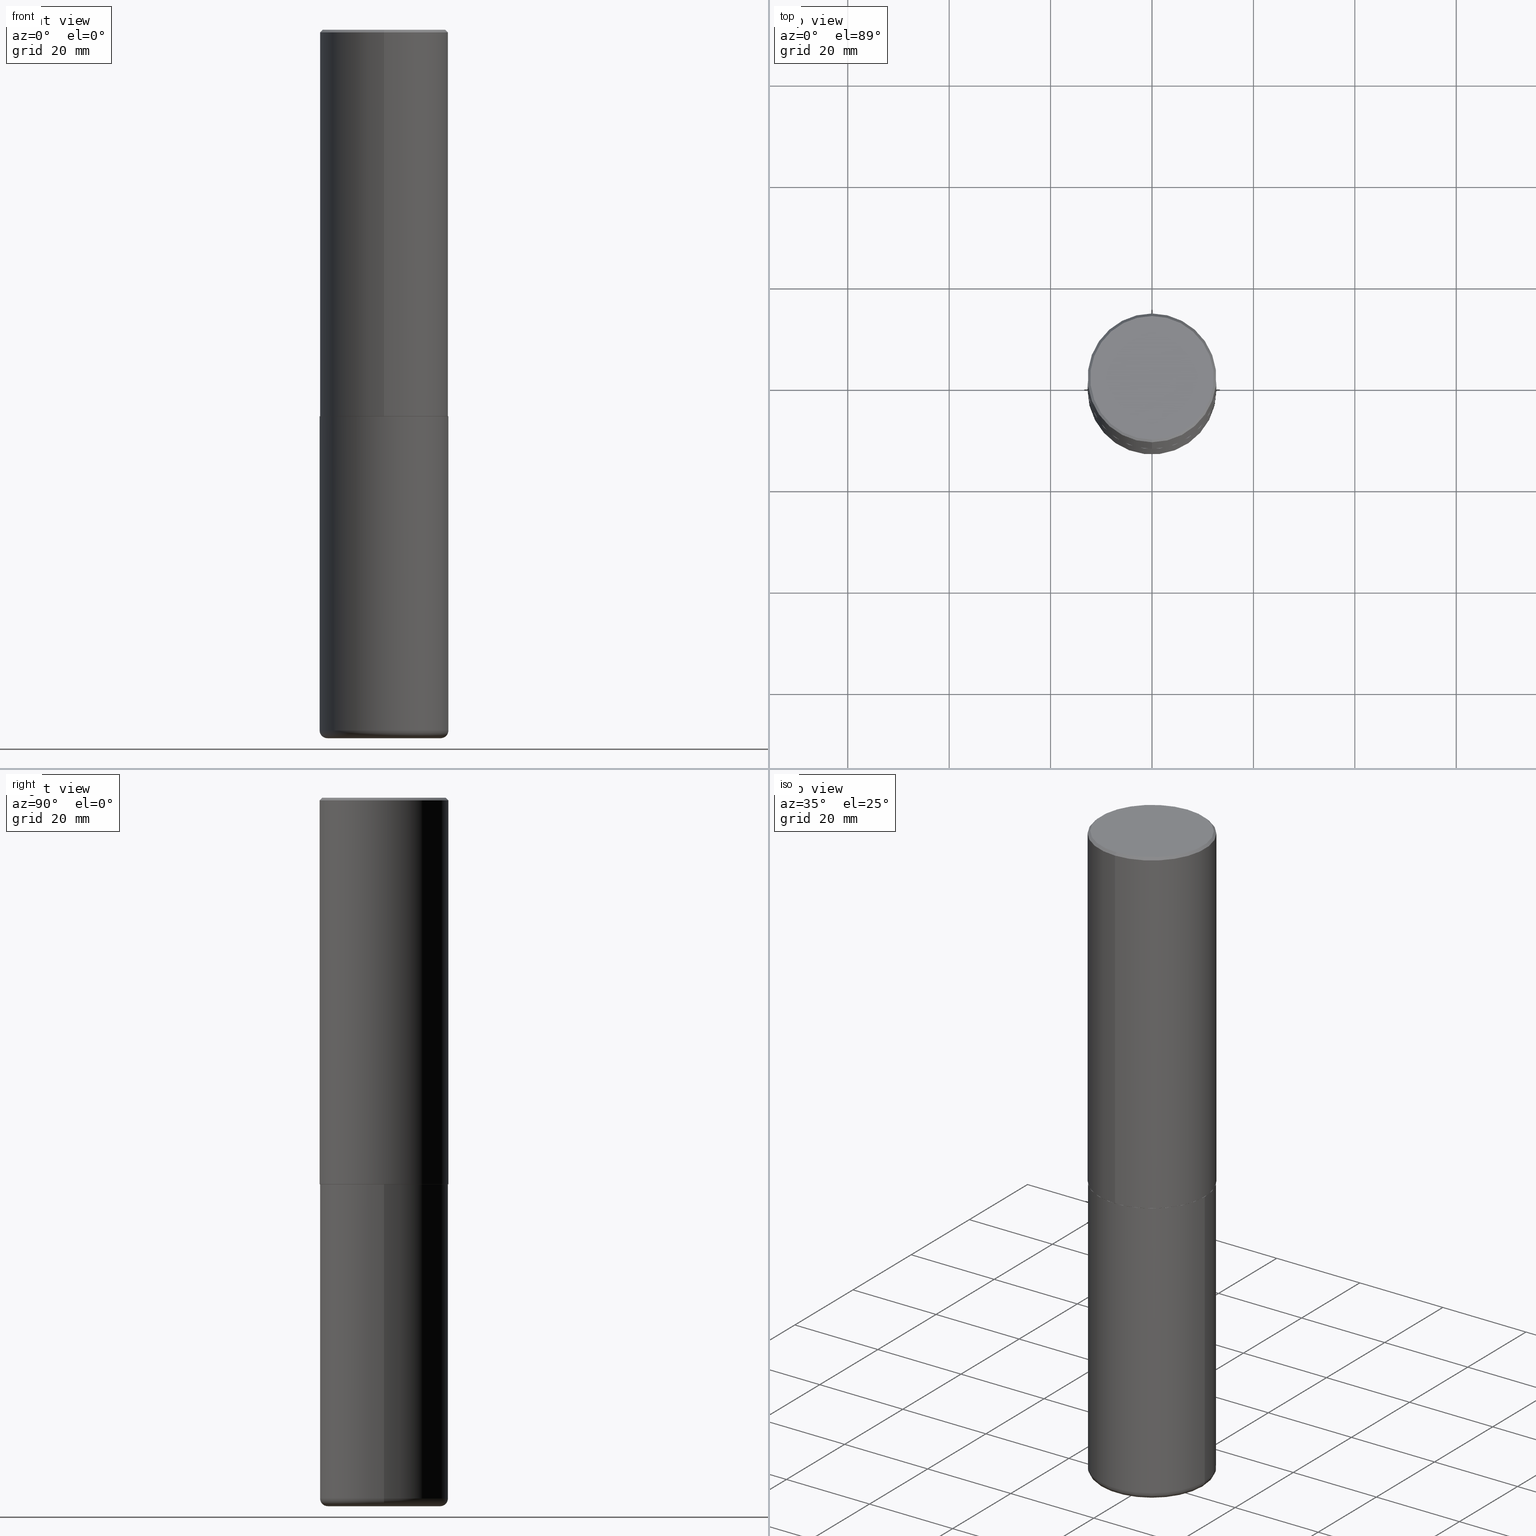
[diagram: canonical four-view strip — front | top / right | iso, engineering-drawing reading convention]
A machine part, canonical four-view strip (front | top / right | iso — engineering-drawing reading convention). The complete STEP part file that produces these views, byte-faithful:
ISO-10303-21;
HEADER;
FILE_DESCRIPTION (( 'STEP AP203' ),
    '1' );
FILE_NAME ('77468.STEP',
    '2024-05-02T19:45:51',
    ( '' ),
    ( '' ),
    'SwSTEP 2.0',
    'SolidWorks 2023',
    '' );
FILE_SCHEMA (( 'CONFIG_CONTROL_DESIGN' ));
ENDSEC;

DATA;
#1 = DIRECTION ( 'NONE',  ( 1.000000000000000000, -6.982962677686269077E-15, 0.000000000000000000 ) ) ;
#2 = CC_DESIGN_APPROVAL ( #122, ( #167 ) ) ;
#3 = VERTEX_POINT ( 'NONE', #256 ) ;
#4 = ADVANCED_FACE ( 'NONE', ( #134 ), #259, .F. ) ;
#5 = VERTEX_POINT ( 'NONE', #397 ) ;
#6 = CIRCLE ( 'NONE', #292, 0.5000000000000001110 ) ;
#7 = DIRECTION ( 'NONE',  ( 2.438088387897960049E-29, -3.491481338843145188E-15, -1.000000000000000000 ) ) ;
#8 = ORIENTED_EDGE ( 'NONE', *, *, #366, .F. ) ;
#9 = ORIENTED_EDGE ( 'NONE', *, *, #78, .T. ) ;
#10 = AXIS2_PLACEMENT_3D ( 'NONE', #295, #241, #172 ) ;
#11 = MANIFOLD_SOLID_BREP ( 'Body-Move/Copy2[1]', #391 ) ;
#12 = FACE_OUTER_BOUND ( 'NONE', #34, .T. ) ;
#13 = DATE_AND_TIME ( #52, #21 ) ;
#14 = CARTESIAN_POINT ( 'NONE',  ( -3.430248998885764992E-15, -0.5000000000000001110, -0.01999999999999835937 ) ) ;
#15 = PERSON_AND_ORGANIZATION ( #312, #395 ) ;
#16 = DIRECTION ( 'NONE',  ( -4.851104656540954020E-15, -0.7071067811865485719, -0.7071067811865464625 ) ) ;
#17 = CIRCLE ( 'NONE', #261, 0.5000000000000003331 ) ;
#18 = DIRECTION ( 'NONE',  ( -4.937700262167245946E-15, -0.7071067811869314879, 0.7071067811861635466 ) ) ;
#19 = DIRECTION ( 'NONE',  ( 1.000000000000000000, 0.000000000000000000, 0.000000000000000000 ) ) ;
#20 = PRODUCT_DEFINITION_FORMATION_WITH_SPECIFIED_SOURCE ( 'ANY', '', #41, .NOT_KNOWN. ) ;
#21 = LOCAL_TIME ( 15, 45, 51.00000000000000000, #338 ) ;
#22 = DIRECTION ( 'NONE',  ( -2.445468806185136877E-29, 3.491481338843145188E-15, 1.000000000000000000 ) ) ;
#23 = COORDINATED_UNIVERSAL_TIME_OFFSET ( 5, 0, .BEHIND. ) ;
#24 = EDGE_CURVE ( 'NONE', #277, #188, #266, .T. ) ;
#25 = DIRECTION ( 'NONE',  ( -2.446018302604025097E-29, 3.490694428695902798E-15, 1.000000000000000000 ) ) ;
#26 = CIRCLE ( 'NONE', #255, 0.5000000000000001110 ) ;
#27 = CONICAL_SURFACE ( 'NONE', #157, 0.4989999999999999991, 0.7853981633979947308 ) ;
#28 = PLANE ( 'NONE',  #268 ) ;
#29 = CARTESIAN_POINT ( 'NONE',  ( 7.338054907812074731E-29, -1.047208328608770642E-14, -2.999999999999999556 ) ) ;
#30 = APPROVAL_DATE_TIME ( #62, #122 ) ;
#31 = CARTESIAN_POINT ( 'NONE',  ( -0.5000000000000002220, -1.544094480450621205E-14, -5.439999999999999503 ) ) ;
#32 = LINE ( 'NONE', #349, #124 ) ;
#33 = AXIS2_PLACEMENT_3D ( 'NONE', #153, #187, #185 ) ;
#34 = EDGE_LOOP ( 'NONE', ( #392, #316, #281, #71 ) ) ;
#35 = ORIENTED_EDGE ( 'NONE', *, *, #114, .F. ) ;
#36 = ORIENTED_EDGE ( 'NONE', *, *, #240, .T. ) ;
#37 = AXIS2_PLACEMENT_3D ( 'NONE', #48, #407, #337 ) ;
#38 = ADVANCED_FACE ( 'NONE', ( #354 ), #390, .T. ) ;
#39 = ORIENTED_EDGE ( 'NONE', *, *, #346, .F. ) ;
#40 = EDGE_CURVE ( 'NONE', #222, #226, #84, .T. ) ;
#41 = PRODUCT ( '77468', '77468', '', ( #150 ) ) ;
#42 = ORIENTED_EDGE ( 'NONE', *, *, #193, .F. ) ;
#43 = CARTESIAN_POINT ( 'NONE',  ( 7.338054907812074731E-29, -1.047208328608770642E-14, -2.999999999999999556 ) ) ;
#44 = DATE_TIME_ROLE ( 'creation_date' ) ;
#45 =( GEOMETRIC_REPRESENTATION_CONTEXT ( 3 ) GLOBAL_UNCERTAINTY_ASSIGNED_CONTEXT ( ( #59 ) ) GLOBAL_UNIT_ASSIGNED_CONTEXT ( ( #298, #368, #231 ) ) REPRESENTATION_CONTEXT ( 'NONE', 'WORKASPACE' ) );
#46 = DIRECTION ( 'NONE',  ( -2.446018302604025097E-29, 3.490694428695902798E-15, 1.000000000000000000 ) ) ;
#47 = DATE_AND_TIME ( #117, #294 ) ;
#48 = CARTESIAN_POINT ( 'NONE',  ( 3.351822085289408337E-15, 0.4800000000000000933, -1.729078590335627126E-15 ) ) ;
#49 = LOCAL_TIME ( 15, 45, 51.00000000000000000, #177 ) ;
#50 = APPROVAL_STATUS ( 'not_yet_approved' ) ;
#51 = DIRECTION ( 'NONE',  ( -2.446018302604025378E-29, 3.490694428695902798E-15, 1.000000000000000000 ) ) ;
#52 = CALENDAR_DATE ( 2024, 2, 5 ) ;
#53 = CIRCLE ( 'NONE', #119, 0.4400000000000000022 ) ;
#54 = DIRECTION ( 'NONE',  ( -6.982962677686265922E-15, -1.000000000000000000, 3.490694428695902798E-15 ) ) ;
#55 = EDGE_CURVE ( 'NONE', #374, #196, #26, .T. ) ;
#56 = DIRECTION ( 'NONE',  ( 0.000000000000000000, 0.000000000000000000, 1.000000000000000000 ) ) ;
#57 = CARTESIAN_POINT ( 'NONE',  ( 7.335608889509473609E-29, -1.046859259165901344E-14, -2.999000000000000554 ) ) ;
#58 = DIRECTION ( 'NONE',  ( -2.446018302604025378E-29, 3.490694428695902798E-15, 1.000000000000000000 ) ) ;
#59 = UNCERTAINTY_MEASURE_WITH_UNIT (LENGTH_MEASURE( 1.000000000000000082E-05 ), #298, 'distance_accuracy_value', 'NONE');
#60 = CONICAL_SURFACE ( 'NONE', #318, 0.5000000000000000000, 0.7853981633974463916 ) ;
#61 = LINE ( 'NONE', #348, #68 ) ;
#62 = DATE_AND_TIME ( #204, #49 ) ;
#63 = DIRECTION ( 'NONE',  ( -2.445468806185136877E-29, 3.491481338843145188E-15, 1.000000000000000000 ) ) ;
#64 = ORIENTED_EDGE ( 'NONE', *, *, #127, .T. ) ;
#65 = CARTESIAN_POINT ( 'NONE',  ( 4.892036605208077240E-31, -6.981388857391842821E-17, -0.02000000000000010797 ) ) ;
#66 = EDGE_LOOP ( 'NONE', ( #288, #323 ) ) ;
#67 = DIRECTION ( 'NONE',  ( 1.000000000000000000, -6.982962677686270655E-15, 0.000000000000000000 ) ) ;
#68 = VECTOR ( 'NONE', #63, 39.37007874015748143 ) ;
#69 = APPROVAL ( #173, 'UNSPECIFIED' ) ;
#70 = ORIENTED_EDGE ( 'NONE', *, *, #282, .F. ) ;
#71 = ORIENTED_EDGE ( 'NONE', *, *, #301, .F. ) ;
#72 = ORIENTED_EDGE ( 'NONE', *, *, #317, .T. ) ;
#73 = AXIS2_PLACEMENT_3D ( 'NONE', #297, #79, #367 ) ;
#74 = ORIENTED_EDGE ( 'NONE', *, *, #102, .F. ) ;
#75 = ORIENTED_EDGE ( 'NONE', *, *, #396, .F. ) ;
#76 = APPLICATION_PROTOCOL_DEFINITION ( 'international standard', 'config_control_design', 1994, #406 ) ;
#77 = LINE ( 'NONE', #232, #106 ) ;
#78 = EDGE_CURVE ( 'NONE', #355, #5, #307, .T. ) ;
#79 = DIRECTION ( 'NONE',  ( 7.105427357601001859E-15, 1.000000000000000000, -3.491481338843145583E-15 ) ) ;
#80 = CARTESIAN_POINT ( 'NONE',  ( -3.491481338843061963E-15, -0.5000000000000107692, -2.998999999999998778 ) ) ;
#81 = APPROVAL_STATUS ( 'not_yet_approved' ) ;
#82 = EDGE_CURVE ( 'NONE', #277, #101, #202, .T. ) ;
#83 = CC_DESIGN_PERSON_AND_ORGANIZATION_ASSIGNMENT ( #146, #363, ( #41 ) ) ;
#84 = LINE ( 'NONE', #271, #201 ) ;
#85 = VECTOR ( 'NONE', #16, 39.37007874015748143 ) ;
#86 = DIRECTION ( 'NONE',  ( -2.445468806185136597E-29, 3.491481338843145583E-15, 1.000000000000000000 ) ) ;
#87 = DIRECTION ( 'NONE',  ( -2.446018302604025378E-29, 3.490694428695902798E-15, 1.000000000000000000 ) ) ;
#88 = ORIENTED_EDGE ( 'NONE', *, *, #156, .F. ) ;
#89 = DIRECTION ( 'NONE',  ( -1.000000000000000000, 6.982962677686265922E-15, -4.876176775795935793E-29 ) ) ;
#90 = AXIS2_PLACEMENT_3D ( 'NONE', #145, #86, #112 ) ;
#91 = CIRCLE ( 'NONE', #219, 0.5000000000000000000 ) ;
#92 = DIRECTION ( 'NONE',  ( -2.445468806185136597E-29, 3.491481338843145583E-15, 1.000000000000000000 ) ) ;
#93 = ORIENTED_EDGE ( 'NONE', *, *, #127, .F. ) ;
#94 = DIRECTION ( 'NONE',  ( 6.982962677686265922E-15, 1.000000000000000000, -3.491643216902136408E-15 ) ) ;
#95 = ORIENTED_EDGE ( 'NONE', *, *, #98, .F. ) ;
#96 = CC_DESIGN_PERSON_AND_ORGANIZATION_ASSIGNMENT ( #296, #109, ( #20 ) ) ;
#97 = DIRECTION ( 'NONE',  ( -2.445468806185136597E-29, 3.491481338843145583E-15, 1.000000000000000000 ) ) ;
#98 = EDGE_CURVE ( 'NONE', #355, #374, #357, .T. ) ;
#99 = CONICAL_SURFACE ( 'NONE', #183, 0.5000000000000000000, 0.7853981633974463916 ) ;
#100 = ORIENTED_EDGE ( 'NONE', *, *, #169, .F. ) ;
#101 = VERTEX_POINT ( 'NONE', #80 ) ;
#102 = EDGE_CURVE ( 'NONE', #417, #199, #233, .T. ) ;
#103 = CARTESIAN_POINT ( 'NONE',  ( 0.000000000000000000, 0.000000000000000000, 0.000000000000000000 ) ) ;
#104 = ORIENTED_EDGE ( 'NONE', *, *, #302, .F. ) ;
#105 = AXIS2_PLACEMENT_3D ( 'NONE', #121, #182, #89 ) ;
#106 = VECTOR ( 'NONE', #22, 39.37007874015748143 ) ;
#107 = DIRECTION ( 'NONE',  ( -2.446018302604025378E-29, 3.490694428695902798E-15, 1.000000000000000000 ) ) ;
#108 = DIRECTION ( 'NONE',  ( 1.000000000000000000, -6.982962677686266711E-15, 0.000000000000000000 ) ) ;
#109 = PERSON_AND_ORGANIZATION_ROLE ( 'design_supplier' ) ;
#110 = DIRECTION ( 'NONE',  ( -2.446018302604025378E-29, 3.490694428695902798E-15, 1.000000000000000000 ) ) ;
#111 = CIRCLE ( 'NONE', #364, 0.4800000000000000933 ) ;
#112 = DIRECTION ( 'NONE',  ( 1.000000000000000000, -6.982962677686270655E-15, 0.000000000000000000 ) ) ;
#113 = APPROVAL_ROLE ( '' ) ;
#114 = EDGE_CURVE ( 'NONE', #374, #199, #77, .T. ) ;
#115 = ADVANCED_FACE ( 'NONE', ( #12 ), #287, .T. ) ;
#116 = FACE_OUTER_BOUND ( 'NONE', #66, .T. ) ;
#117 = CALENDAR_DATE ( 2024, 2, 5 ) ;
#118 = CARTESIAN_POINT ( 'NONE',  ( -3.491481338843133750E-15, -0.5000000000000001110, 1.745347214347951794E-15 ) ) ;
#119 = AXIS2_PLACEMENT_3D ( 'NONE', #320, #97, #67 ) ;
#120 = DIRECTION ( 'NONE',  ( 1.000000000000000000, -6.982962677686273021E-15, 0.000000000000000000 ) ) ;
#121 = CARTESIAN_POINT ( 'NONE',  ( 3.911882143583421782E-29, -3.286238733195861778E-14, -5.500000000000000000 ) ) ;
#122 = APPROVAL ( #50, 'UNSPECIFIED' ) ;
#123 = DIRECTION ( 'NONE',  ( -6.982962677686265922E-15, -1.000000000000000000, 3.490694428695902798E-15 ) ) ;
#124 = VECTOR ( 'NONE', #375, 39.37007874015748143 ) ;
#125 = CARTESIAN_POINT ( 'NONE',  ( 0.000000000000000000, 0.000000000000000000, 0.000000000000000000 ) ) ;
#126 = ORIENTED_EDGE ( 'NONE', *, *, #139, .T. ) ;
#127 = EDGE_CURVE ( 'NONE', #164, #3, #267, .T. ) ;
#128 = FACE_OUTER_BOUND ( 'NONE', #135, .T. ) ;
#129 = ORIENTED_EDGE ( 'NONE', *, *, #40, .T. ) ;
#130 = CARTESIAN_POINT ( 'NONE',  ( 0.000000000000000000, 0.000000000000000000, 0.000000000000000000 ) ) ;
#131 = VERTEX_POINT ( 'NONE', #293 ) ;
#132 = ORIENTED_EDGE ( 'NONE', *, *, #317, .F. ) ;
#133 = ORIENTED_EDGE ( 'NONE', *, *, #40, .F. ) ;
#134 = FACE_OUTER_BOUND ( 'NONE', #379, .T. ) ;
#135 = EDGE_LOOP ( 'NONE', ( #42, #64, #126, #100 ) ) ;
#136 = CIRCLE ( 'NONE', #257, 0.5000000000000003331 ) ;
#137 = LOCAL_TIME ( 15, 45, 51.00000000000000000, #23 ) ;
#138 = ADVANCED_FACE ( 'NONE', ( #332 ), #27, .T. ) ;
#139 = EDGE_CURVE ( 'NONE', #3, #226, #91, .T. ) ;
#140 = LINE ( 'NONE', #335, #341 ) ;
#141 = CALENDAR_DATE ( 2024, 2, 5 ) ;
#142 = CARTESIAN_POINT ( 'NONE',  ( 4.892036605208077240E-31, -6.981388857391842821E-17, -0.02000000000000010797 ) ) ;
#143 = PERSON_AND_ORGANIZATION_ROLE ( 'classification_officer' ) ;
#144 = VECTOR ( 'NONE', #18, 39.37007874015748143 ) ;
#145 = CARTESIAN_POINT ( 'NONE',  ( 1.345007843401825128E-28, -1.920314736363730603E-14, -5.500000000000000888 ) ) ;
#146 = PERSON_AND_ORGANIZATION ( #312, #395 ) ;
#147 = DIRECTION ( 'NONE',  ( -2.445468806185136597E-29, 3.491481338843145583E-15, 1.000000000000000000 ) ) ;
#148 = PERSON_AND_ORGANIZATION_ROLE ( 'creator' ) ;
#149 = LINE ( 'NONE', #118, #378 ) ;
#150 = MECHANICAL_CONTEXT ( 'NONE', #406, 'mechanical' ) ;
#151 = MANIFOLD_SOLID_BREP ( 'Body-Move/Copy2[2]', #328 ) ;
#152 = DIRECTION ( 'NONE',  ( -6.982962677686265922E-15, -1.000000000000000000, 3.490694428695902798E-15 ) ) ;
#153 = CARTESIAN_POINT ( 'NONE',  ( 2.619453942708643347E-45, -3.738203133764044518E-31, -1.070905291231867826E-16 ) ) ;
#154 = ORIENTED_EDGE ( 'NONE', *, *, #380, .T. ) ;
#155 = FACE_OUTER_BOUND ( 'NONE', #228, .T. ) ;
#156 = EDGE_CURVE ( 'NONE', #222, #101, #17, .T. ) ;
#157 = AXIS2_PLACEMENT_3D ( 'NONE', #43, #299, #269 ) ;
#158 = DIRECTION ( 'NONE',  ( -2.445468806185136597E-29, 3.491481338843145583E-15, 1.000000000000000000 ) ) ;
#159 = ORIENTED_EDGE ( 'NONE', *, *, #211, .T. ) ;
#160 = CYLINDRICAL_SURFACE ( 'NONE', #227, 0.5000000000000000000 ) ;
#161 = ORIENTED_EDGE ( 'NONE', *, *, #78, .F. ) ;
#162 = EDGE_LOOP ( 'NONE', ( #358, #350, #229, #88 ) ) ;
#163 = AXIS2_PLACEMENT_3D ( 'NONE', #327, #147, #108 ) ;
#164 = VERTEX_POINT ( 'NONE', #207 ) ;
#165 = APPROVAL_PERSON_ORGANIZATION ( #213, #319, #408 ) ;
#166 = EDGE_LOOP ( 'NONE', ( #321, #36, #104, #415 ) ) ;
#167 = SECURITY_CLASSIFICATION ( '', '', #175 ) ;
#168 = EDGE_LOOP ( 'NONE', ( #262, #129, #194, #186 ) ) ;
#169 = EDGE_CURVE ( 'NONE', #131, #226, #140, .T. ) ;
#170 = ADVANCED_FACE ( 'NONE', ( #263 ), #60, .T. ) ;
#171 = DIRECTION ( 'NONE',  ( 4.937700262164537787E-15, 0.7071067811865436870, -0.7071067811865513475 ) ) ;
#172 = DIRECTION ( 'NONE',  ( 1.000000000000000000, -6.982962677686262766E-15, 4.883557194083111780E-29 ) ) ;
#173 = APPROVAL_STATUS ( 'not_yet_approved' ) ;
#174 = CARTESIAN_POINT ( 'NONE',  ( 2.619453942708643347E-45, -3.738203133764044518E-31, -1.070905291231867826E-16 ) ) ;
#175 = SECURITY_CLASSIFICATION_LEVEL ( 'unclassified' ) ;
#176 = CARTESIAN_POINT ( 'NONE',  ( 0.5000000000000002220, -2.248513982214985265E-14, -5.439999999999999503 ) ) ;
#177 = COORDINATED_UNIVERSAL_TIME_OFFSET ( 5, 0, .BEHIND. ) ;
#178 = AXIS2_PLACEMENT_3D ( 'NONE', #414, #58, #123 ) ;
#179 = CARTESIAN_POINT ( 'NONE',  ( 3.549160965121774184E-15, 0.4989999999999895630, -3.000000000000001332 ) ) ;
#180 = CYLINDRICAL_SURFACE ( 'NONE', #324, 0.5000000000000000000 ) ;
#181 = ADVANCED_FACE ( 'NONE', ( #116 ), #238, .F. ) ;
#182 = DIRECTION ( 'NONE',  ( 2.438088387897960049E-29, -3.491481338843145188E-15, -1.000000000000000000 ) ) ;
#183 = AXIS2_PLACEMENT_3D ( 'NONE', #65, #275, #94 ) ;
#184 = FACE_OUTER_BOUND ( 'NONE', #225, .T. ) ;
#185 = DIRECTION ( 'NONE',  ( -6.982962677686265922E-15, -1.000000000000000000, 3.490694428695902798E-15 ) ) ;
#186 = ORIENTED_EDGE ( 'NONE', *, *, #211, .F. ) ;
#187 = DIRECTION ( 'NONE',  ( -2.446018302604025378E-29, 3.490694428695902798E-15, 1.000000000000000000 ) ) ;
#188 = VERTEX_POINT ( 'NONE', #179 ) ;
#189 = AXIS2_PLACEMENT_3D ( 'NONE', #411, #418, #120 ) ;
#190 = CARTESIAN_POINT ( 'NONE',  ( 0.5000000000000000000, -1.396592535537256813E-14, -2.999999999999999556 ) ) ;
#191 = APPROVAL_PERSON_ORGANIZATION ( #203, #69, #333 ) ;
#192 = EDGE_LOOP ( 'NONE', ( #95, #9, #359, #252 ) ) ;
#193 = EDGE_CURVE ( 'NONE', #164, #131, #111, .T. ) ;
#194 = ORIENTED_EDGE ( 'NONE', *, *, #139, .F. ) ;
#195 = TOROIDAL_SURFACE ( 'NONE', #248, 0.4400000000000000022, 0.06000000000000051820 ) ;
#196 = VERTEX_POINT ( 'NONE', #176 ) ;
#197 = DIRECTION ( 'NONE',  ( -1.000000000000000000, 6.982962677686265922E-15, -4.876176775795935793E-29 ) ) ;
#198 = CC_DESIGN_PERSON_AND_ORGANIZATION_ASSIGNMENT ( #15, #143, ( #167 ) ) ;
#199 = VERTEX_POINT ( 'NONE', #303 ) ;
#200 = COORDINATED_UNIVERSAL_TIME_OFFSET ( 5, 0, .BEHIND. ) ;
#201 = VECTOR ( 'NONE', #46, 39.37007874015748143 ) ;
#202 = LINE ( 'NONE', #398, #144 ) ;
#203 = PERSON_AND_ORGANIZATION ( #312, #395 ) ;
#204 = CALENDAR_DATE ( 2024, 2, 5 ) ;
#205 = DIRECTION ( 'NONE',  ( -6.982962677686265922E-15, -1.000000000000000000, 3.278217592397113496E-15 ) ) ;
#206 = APPROVAL_DATE_TIME ( #13, #319 ) ;
#207 = CARTESIAN_POINT ( 'NONE',  ( -3.361644018908050055E-15, -0.4800000000000000933, 1.568442796650846842E-15 ) ) ;
#208 = ADVANCED_BREP_SHAPE_REPRESENTATION ( '77468', ( #11, #151, #331 ), #45 ) ;
#209 = CARTESIAN_POINT ( 'NONE',  ( 0.000000000000000000, 0.000000000000000000, 0.000000000000000000 ) ) ;
#210 = AXIS2_PLACEMENT_3D ( 'NONE', #286, #7, #197 ) ;
#211 = EDGE_CURVE ( 'NONE', #101, #3, #149, .T. ) ;
#212 = DIRECTION ( 'NONE',  ( -6.982962677686265922E-15, -1.000000000000000000, 3.491643216902136408E-15 ) ) ;
#213 = PERSON_AND_ORGANIZATION ( #312, #395 ) ;
#214 = CIRCLE ( 'NONE', #33, 0.4800000000000000933 ) ;
#215 = DIRECTION ( 'NONE',  ( 1.000000000000000000, -6.982962677686266711E-15, 4.876176775795935793E-29 ) ) ;
#216 = ADVANCED_FACE ( 'NONE', ( #306 ), #28, .F. ) ;
#217 = CYLINDRICAL_SURFACE ( 'NONE', #178, 0.5000000000000001110 ) ;
#218 = CARTESIAN_POINT ( 'NONE',  ( 7.336406418555408669E-29, -1.047444401652943478E-14, -2.999999999999999556 ) ) ;
#219 = AXIS2_PLACEMENT_3D ( 'NONE', #142, #264, #212 ) ;
#220 = DIRECTION ( 'NONE',  ( 1.000000000000000000, -6.982962677686262766E-15, 4.883557194083111780E-29 ) ) ;
#221 = CARTESIAN_POINT ( 'NONE',  ( -3.484498376165373188E-15, -0.4990000000000104352, -2.999999999999998224 ) ) ;
#222 = VERTEX_POINT ( 'NONE', #274 ) ;
#223 = DIRECTION ( 'NONE',  ( 1.000000000000000000, -6.982962677686266711E-15, 4.876176775795935793E-29 ) ) ;
#224 = ORIENTED_EDGE ( 'NONE', *, *, #55, .T. ) ;
#225 = EDGE_LOOP ( 'NONE', ( #133, #386, #159, #132 ) ) ;
#226 = VERTEX_POINT ( 'NONE', #315 ) ;
#227 = AXIS2_PLACEMENT_3D ( 'NONE', #130, #284, #223 ) ;
#228 = EDGE_LOOP ( 'NONE', ( #75, #161 ) ) ;
#229 = ORIENTED_EDGE ( 'NONE', *, *, #82, .T. ) ;
#230 = DIRECTION ( 'NONE',  ( -6.982962677686265922E-15, -1.000000000000000000, 3.490694428695902798E-15 ) ) ;
#231 =( NAMED_UNIT ( * ) SI_UNIT ( $, .STERADIAN. ) SOLID_ANGLE_UNIT ( ) );
#232 = CARTESIAN_POINT ( 'NONE',  ( -0.5000000000000000000, 3.552713678800500929E-15, -2.459467545127452891E-29 ) ) ;
#233 = CIRCLE ( 'NONE', #163, 0.5000000000000000000 ) ;
#234 = CALENDAR_DATE ( 2024, 2, 5 ) ;
#235 = ADVANCED_FACE ( 'NONE', ( #412 ), #300, .T. ) ;
#236 = DIRECTION ( 'NONE',  ( 2.446018302604025378E-29, -3.490694428695902798E-15, -1.000000000000000000 ) ) ;
#237 = DATE_AND_TIME ( #141, #137 ) ;
#238 = PLANE ( 'NONE',  #37 ) ;
#239 = APPLICATION_PROTOCOL_DEFINITION ( 'international standard', 'config_control_design', 1994, #290 ) ;
#240 = EDGE_CURVE ( 'NONE', #188, #222, #32, .T. ) ;
#241 = DIRECTION ( 'NONE',  ( -2.445468806185136597E-29, 3.491481338843145583E-15, 1.000000000000000000 ) ) ;
#242 = LENGTH_MEASURE_WITH_UNIT ( LENGTH_MEASURE( 0.02539999999999999897 ), #272 );
#243 = CIRCLE ( 'NONE', #353, 0.4989999999999999991 ) ;
#244 = DIRECTION ( 'NONE',  ( -6.982962677686265922E-15, -1.000000000000000000, 3.278217592397113496E-15 ) ) ;
#245 = PLANE ( 'NONE',  #105 ) ;
#246 = DIRECTION ( 'NONE',  ( -6.982962677686265922E-15, -1.000000000000000000, 3.284787166730577015E-15 ) ) ;
#247 = EDGE_LOOP ( 'NONE', ( #35, #224, #383, #70 ) ) ;
#248 = AXIS2_PLACEMENT_3D ( 'NONE', #377, #92, #220 ) ;
#249 = CARTESIAN_POINT ( 'NONE',  ( 7.338054907812074731E-29, -1.047208328608770642E-14, -2.999999999999999556 ) ) ;
#250 = ORIENTED_EDGE ( 'NONE', *, *, #282, .T. ) ;
#251 = FACE_OUTER_BOUND ( 'NONE', #325, .T. ) ;
#252 = ORIENTED_EDGE ( 'NONE', *, *, #55, .F. ) ;
#253 = FACE_OUTER_BOUND ( 'NONE', #247, .T. ) ;
#254 = CC_DESIGN_DATE_AND_TIME_ASSIGNMENT ( #270, #405, ( #167 ) ) ;
#255 = AXIS2_PLACEMENT_3D ( 'NONE', #371, #369, #361 ) ;
#256 = CARTESIAN_POINT ( 'NONE',  ( -3.430248998885764992E-15, -0.5000000000000001110, -0.01999999999999835937 ) ) ;
#257 = AXIS2_PLACEMENT_3D ( 'NONE', #57, #87, #244 ) ;
#258 = EDGE_LOOP ( 'NONE', ( #356, #39 ) ) ;
#259 = PLANE ( 'NONE',  #210 ) ;
#260 = CARTESIAN_POINT ( 'NONE',  ( 7.338054907812074731E-29, -1.047208328608770642E-14, -2.999999999999999556 ) ) ;
#261 = AXIS2_PLACEMENT_3D ( 'NONE', #365, #110, #205 ) ;
#262 = ORIENTED_EDGE ( 'NONE', *, *, #302, .T. ) ;
#263 = FACE_OUTER_BOUND ( 'NONE', #285, .T. ) ;
#264 = DIRECTION ( 'NONE',  ( -2.446018302604025378E-29, 3.490694428695902798E-15, 1.000000000000000000 ) ) ;
#265 = ADVANCED_FACE ( 'NONE', ( #128 ), #99, .T. ) ;
#266 = CIRCLE ( 'NONE', #376, 0.4989999999999999991 ) ;
#267 = LINE ( 'NONE', #14, #85 ) ;
#268 = AXIS2_PLACEMENT_3D ( 'NONE', #416, #25, #152 ) ;
#269 = DIRECTION ( 'NONE',  ( -6.982962677686265922E-15, -1.000000000000000000, 3.284787166730577015E-15 ) ) ;
#270 = DATE_AND_TIME ( #234, #413 ) ;
#271 = CARTESIAN_POINT ( 'NONE',  ( 3.552713678800501718E-15, 0.5000000000000001110, -1.745347214347951794E-15 ) ) ;
#272 =( LENGTH_UNIT ( ) NAMED_UNIT ( * ) SI_UNIT ( $, .METRE. ) );
#273 = DIRECTION ( 'NONE',  ( 1.000000000000000000, -6.982962677686266711E-15, 0.000000000000000000 ) ) ;
#274 = CARTESIAN_POINT ( 'NONE',  ( 3.552713678800539584E-15, 0.4999999999999898970, -2.999000000000001886 ) ) ;
#275 = DIRECTION ( 'NONE',  ( 2.446018302604025378E-29, -3.490694428695902798E-15, -1.000000000000000000 ) ) ;
#276 = CARTESIAN_POINT ( 'NONE',  ( 1.330335030564714425E-28, -1.899365848330671298E-14, -5.439999999999999503 ) ) ;
#277 = VERTEX_POINT ( 'NONE', #221 ) ;
#278 = ADVANCED_FACE ( 'NONE', ( #155 ), #245, .T. ) ;
#279 = CIRCLE ( 'NONE', #189, 0.06000000000000051820 ) ;
#280 = DIRECTION ( 'NONE',  ( -2.446018302604025378E-29, 3.490694428695902798E-15, 1.000000000000000000 ) ) ;
#281 = ORIENTED_EDGE ( 'NONE', *, *, #380, .F. ) ;
#282 = EDGE_CURVE ( 'NONE', #199, #417, #401, .T. ) ;
#283 = EDGE_CURVE ( 'NONE', #131, #164, #214, .T. ) ;
#284 = DIRECTION ( 'NONE',  ( -2.445468806185136597E-29, 3.491481338843145583E-15, 1.000000000000000000 ) ) ;
#285 = EDGE_LOOP ( 'NONE', ( #93, #388, #314, #72 ) ) ;
#286 = CARTESIAN_POINT ( 'NONE',  ( 7.336406418555408669E-29, -1.047444401652943478E-14, -2.999999999999999556 ) ) ;
#287 = TOROIDAL_SURFACE ( 'NONE', #10, 0.4400000000000000022, 0.06000000000000051820 ) ;
#288 = ORIENTED_EDGE ( 'NONE', *, *, #283, .T. ) ;
#289 = ORIENTED_EDGE ( 'NONE', *, *, #102, .T. ) ;
#290 = APPLICATION_CONTEXT ( 'configuration controlled 3d designs of mechanical parts and assemblies' ) ;
#291 = ORIENTED_EDGE ( 'NONE', *, *, #114, .T. ) ;
#292 = AXIS2_PLACEMENT_3D ( 'NONE', #276, #351, #1 ) ;
#293 = CARTESIAN_POINT ( 'NONE',  ( 3.421651712066271240E-15, 0.4800000000000000933, -1.782623854897220357E-15 ) ) ;
#294 = LOCAL_TIME ( 15, 45, 51.00000000000000000, #200 ) ;
#295 = CARTESIAN_POINT ( 'NONE',  ( 1.330335030564714425E-28, -1.899365848330671298E-14, -5.439999999999999503 ) ) ;
#296 = PERSON_AND_ORGANIZATION ( #312, #395 ) ;
#297 = CARTESIAN_POINT ( 'NONE',  ( -0.4400000000000000022, -1.586727044596227254E-14, -5.439999999999999503 ) ) ;
#298 =( CONVERSION_BASED_UNIT ( 'INCH', #242 ) LENGTH_UNIT ( ) NAMED_UNIT ( #387 ) );
#299 = DIRECTION ( 'NONE',  ( -2.446018302604025378E-29, 3.490694428695902798E-15, 1.000000000000000000 ) ) ;
#300 = CONICAL_SURFACE ( 'NONE', #339, 0.4989999999999999991, 0.7853981633979947308 ) ;
#301 = EDGE_CURVE ( 'NONE', #5, #196, #279, .T. ) ;
#302 = EDGE_CURVE ( 'NONE', #101, #222, #136, .T. ) ;
#303 = CARTESIAN_POINT ( 'NONE',  ( -0.5000000000000000000, -1.118133757111757295E-14, -2.999999999999999556 ) ) ;
#304 = APPROVAL_DATE_TIME ( #47, #69 ) ;
#305 = DESIGN_CONTEXT ( 'detailed design', #290, 'design' ) ;
#306 = FACE_OUTER_BOUND ( 'NONE', #258, .T. ) ;
#307 = CIRCLE ( 'NONE', #90, 0.4400000000000000022 ) ;
#308 = FACE_OUTER_BOUND ( 'NONE', #192, .T. ) ;
#309 = AXIS2_PLACEMENT_3D ( 'NONE', #313, #372, #342 ) ;
#310 = ADVANCED_FACE ( 'NONE', ( #251 ), #180, .T. ) ;
#311 = DIRECTION ( 'NONE',  ( -6.982962677686265922E-15, -1.000000000000000000, 3.284787166730577015E-15 ) ) ;
#312 = PERSON ( 'UNSPECIFIED', 'UNSPECIFIED', 'UNSPECIFIED', ('UNSPECIFIED'), ('UNSPECIFIED'), ('UNSPECIFIED') ) ;
#313 = CARTESIAN_POINT ( 'NONE',  ( 4.892036605208077240E-31, -6.981388857391842821E-17, -0.02000000000000010797 ) ) ;
#314 = ORIENTED_EDGE ( 'NONE', *, *, #169, .T. ) ;
#315 = CARTESIAN_POINT ( 'NONE',  ( 3.491481338843133355E-15, 0.4999999999999999445, -0.02000000000000185310 ) ) ;
#316 = ORIENTED_EDGE ( 'NONE', *, *, #98, .T. ) ;
#317 = EDGE_CURVE ( 'NONE', #226, #3, #370, .T. ) ;
#318 = AXIS2_PLACEMENT_3D ( 'NONE', #340, #236, #402 ) ;
#319 = APPROVAL ( #81, 'UNSPECIFIED' ) ;
#320 = CARTESIAN_POINT ( 'NONE',  ( 1.345007843401825128E-28, -1.920314736363730603E-14, -5.500000000000000888 ) ) ;
#321 = ORIENTED_EDGE ( 'NONE', *, *, #24, .T. ) ;
#322 = ADVANCED_FACE ( 'NONE', ( #184 ), #217, .T. ) ;
#323 = ORIENTED_EDGE ( 'NONE', *, *, #193, .T. ) ;
#324 = AXIS2_PLACEMENT_3D ( 'NONE', #125, #384, #215 ) ;
#325 = EDGE_LOOP ( 'NONE', ( #154, #291, #74, #8 ) ) ;
#326 = DIRECTION ( 'NONE',  ( -6.982962677686265922E-15, -1.000000000000000000, 3.284787166730577015E-15 ) ) ;
#327 = CARTESIAN_POINT ( 'NONE',  ( 7.336406418555408669E-29, -1.047444401652943478E-14, -2.999999999999999556 ) ) ;
#328 = CLOSED_SHELL ( 'NONE', ( #235, #38, #265, #170, #322, #138, #216, #181 ) ) ;
#329 = PERSON_AND_ORGANIZATION ( #312, #395 ) ;
#330 = CC_DESIGN_PERSON_AND_ORGANIZATION_ASSIGNMENT ( #399, #403, ( #20 ) ) ;
#331 = AXIS2_PLACEMENT_3D ( 'NONE', #209, #56, #19 ) ;
#332 = FACE_OUTER_BOUND ( 'NONE', #162, .T. ) ;
#333 = APPROVAL_ROLE ( '' ) ;
#334 = CC_DESIGN_APPROVAL ( #69, ( #394 ) ) ;
#335 = CARTESIAN_POINT ( 'NONE',  ( 3.491481338843133355E-15, 0.4999999999999999445, -0.02000000000000185310 ) ) ;
#336 = PERSON_AND_ORGANIZATION ( #312, #395 ) ;
#337 = DIRECTION ( 'NONE',  ( 6.982962677686265922E-15, 1.000000000000000000, -3.490694428695902798E-15 ) ) ;
#338 = COORDINATED_UNIVERSAL_TIME_OFFSET ( 5, 0, .BEHIND. ) ;
#339 = AXIS2_PLACEMENT_3D ( 'NONE', #29, #280, #311 ) ;
#340 = CARTESIAN_POINT ( 'NONE',  ( 4.892036605208077240E-31, -6.981388857391842821E-17, -0.02000000000000010797 ) ) ;
#341 = VECTOR ( 'NONE', #171, 39.37007874015748143 ) ;
#342 = DIRECTION ( 'NONE',  ( -6.982962677686265922E-15, -1.000000000000000000, 3.491643216902136408E-15 ) ) ;
#343 = DIRECTION ( 'NONE',  ( -2.446018302604025097E-29, 3.490694428695902798E-15, 1.000000000000000000 ) ) ;
#344 = CC_DESIGN_SECURITY_CLASSIFICATION ( #167, ( #20 ) ) ;
#345 = APPROVAL_PERSON_ORGANIZATION ( #336, #122, #113 ) ;
#346 = EDGE_CURVE ( 'NONE', #188, #277, #243, .T. ) ;
#347 = CARTESIAN_POINT ( 'NONE',  ( -0.4400000000000000022, -1.575885206539953724E-14, -5.500000000000000888 ) ) ;
#348 = CARTESIAN_POINT ( 'NONE',  ( 0.5000000000000000000, -3.491481338843133355E-15, 2.438088387897967896E-29 ) ) ;
#349 = CARTESIAN_POINT ( 'NONE',  ( 3.545608251442972496E-15, 0.4989999999999895630, -3.000000000000001332 ) ) ;
#350 = ORIENTED_EDGE ( 'NONE', *, *, #346, .T. ) ;
#351 = DIRECTION ( 'NONE',  ( -2.445468806185136597E-29, 3.491481338843145583E-15, 1.000000000000000000 ) ) ;
#352 = SHAPE_DEFINITION_REPRESENTATION ( #362, #208 ) ;
#353 = AXIS2_PLACEMENT_3D ( 'NONE', #249, #382, #246 ) ;
#354 = FACE_OUTER_BOUND ( 'NONE', #168, .T. ) ;
#355 = VERTEX_POINT ( 'NONE', #347 ) ;
#356 = ORIENTED_EDGE ( 'NONE', *, *, #24, .F. ) ;
#357 = CIRCLE ( 'NONE', #73, 0.06000000000000051820 ) ;
#358 = ORIENTED_EDGE ( 'NONE', *, *, #240, .F. ) ;
#359 = ORIENTED_EDGE ( 'NONE', *, *, #301, .T. ) ;
#360 = ADVANCED_FACE ( 'NONE', ( #308 ), #195, .T. ) ;
#361 = DIRECTION ( 'NONE',  ( 1.000000000000000000, -6.982962677686269077E-15, 0.000000000000000000 ) ) ;
#362 = PRODUCT_DEFINITION_SHAPE ( 'NONE', 'NONE',  #394 ) ;
#363 = PERSON_AND_ORGANIZATION_ROLE ( 'design_owner' ) ;
#364 = AXIS2_PLACEMENT_3D ( 'NONE', #174, #51, #54 ) ;
#365 = CARTESIAN_POINT ( 'NONE',  ( 7.335608889509473609E-29, -1.046859259165901344E-14, -2.999000000000000554 ) ) ;
#366 = EDGE_CURVE ( 'NONE', #196, #417, #61, .T. ) ;
#367 = DIRECTION ( 'NONE',  ( -1.000000000000000000, 7.105427357600994759E-15, 0.000000000000000000 ) ) ;
#368 =( NAMED_UNIT ( * ) PLANE_ANGLE_UNIT ( ) SI_UNIT ( $, .RADIAN. ) );
#369 = DIRECTION ( 'NONE',  ( -2.445468806185136597E-29, 3.491481338843145583E-15, 1.000000000000000000 ) ) ;
#370 = CIRCLE ( 'NONE', #309, 0.5000000000000000000 ) ;
#371 = CARTESIAN_POINT ( 'NONE',  ( 1.330335030564714425E-28, -1.899365848330671298E-14, -5.439999999999999503 ) ) ;
#372 = DIRECTION ( 'NONE',  ( -2.446018302604025378E-29, 3.490694428695902798E-15, 1.000000000000000000 ) ) ;
#373 = CC_DESIGN_APPROVAL ( #319, ( #20 ) ) ;
#374 = VERTEX_POINT ( 'NONE', #31 ) ;
#375 = DIRECTION ( 'NONE',  ( 5.024295867790807626E-15, 0.7071067811869363728, 0.7071067811861586616 ) ) ;
#376 = AXIS2_PLACEMENT_3D ( 'NONE', #260, #107, #326 ) ;
#377 = CARTESIAN_POINT ( 'NONE',  ( 1.330335030564714425E-28, -1.899365848330671298E-14, -5.439999999999999503 ) ) ;
#378 = VECTOR ( 'NONE', #343, 39.37007874015748143 ) ;
#379 = EDGE_LOOP ( 'NONE', ( #289, #250 ) ) ;
#380 = EDGE_CURVE ( 'NONE', #196, #374, #6, .T. ) ;
#381 = ADVANCED_FACE ( 'NONE', ( #253 ), #160, .T. ) ;
#382 = DIRECTION ( 'NONE',  ( -2.446018302604025378E-29, 3.490694428695902798E-15, 1.000000000000000000 ) ) ;
#383 = ORIENTED_EDGE ( 'NONE', *, *, #366, .T. ) ;
#384 = DIRECTION ( 'NONE',  ( -2.445468806185136597E-29, 3.491481338843145583E-15, 1.000000000000000000 ) ) ;
#385 = AXIS2_PLACEMENT_3D ( 'NONE', #103, #404, #230 ) ;
#386 = ORIENTED_EDGE ( 'NONE', *, *, #156, .T. ) ;
#387 = DIMENSIONAL_EXPONENTS ( 1.000000000000000000, 0.000000000000000000, 0.000000000000000000, 0.000000000000000000, 0.000000000000000000, 0.000000000000000000, 0.000000000000000000 ) ;
#388 = ORIENTED_EDGE ( 'NONE', *, *, #283, .F. ) ;
#389 = CC_DESIGN_DATE_AND_TIME_ASSIGNMENT ( #237, #44, ( #394 ) ) ;
#390 = CYLINDRICAL_SURFACE ( 'NONE', #385, 0.5000000000000001110 ) ;
#391 = CLOSED_SHELL ( 'NONE', ( #310, #115, #4, #381, #360, #278 ) ) ;
#392 = ORIENTED_EDGE ( 'NONE', *, *, #396, .T. ) ;
#393 = AXIS2_PLACEMENT_3D ( 'NONE', #218, #158, #273 ) ;
#394 = PRODUCT_DEFINITION ( 'UNKNOWN', '', #20, #305 ) ;
#395 = ORGANIZATION ( 'UNSPECIFIED', 'UNSPECIFIED', '' ) ;
#396 = EDGE_CURVE ( 'NONE', #5, #355, #53, .T. ) ;
#397 = CARTESIAN_POINT ( 'NONE',  ( 0.4400000000000000022, -2.227565094181926275E-14, -5.500000000000000888 ) ) ;
#398 = CARTESIAN_POINT ( 'NONE',  ( -3.484498376165373188E-15, -0.4990000000000104352, -2.999999999999998224 ) ) ;
#399 = PERSON_AND_ORGANIZATION ( #312, #395 ) ;
#400 = COORDINATED_UNIVERSAL_TIME_OFFSET ( 5, 0, .BEHIND. ) ;
#401 = CIRCLE ( 'NONE', #393, 0.5000000000000000000 ) ;
#402 = DIRECTION ( 'NONE',  ( 6.982962677686265922E-15, 1.000000000000000000, -3.491643216902136408E-15 ) ) ;
#403 = PERSON_AND_ORGANIZATION_ROLE ( 'creator' ) ;
#404 = DIRECTION ( 'NONE',  ( -2.446018302604025378E-29, 3.490694428695902798E-15, 1.000000000000000000 ) ) ;
#405 = DATE_TIME_ROLE ( 'classification_date' ) ;
#406 = APPLICATION_CONTEXT ( 'configuration controlled 3d designs of mechanical parts and assemblies' ) ;
#407 = DIRECTION ( 'NONE',  ( 2.446018302604025097E-29, -3.490694428695902798E-15, -1.000000000000000000 ) ) ;
#408 = APPROVAL_ROLE ( '' ) ;
#409 = PRODUCT_RELATED_PRODUCT_CATEGORY ( 'detail', '', ( #41 ) ) ;
#410 = CC_DESIGN_PERSON_AND_ORGANIZATION_ASSIGNMENT ( #329, #148, ( #394 ) ) ;
#411 = CARTESIAN_POINT ( 'NONE',  ( 0.4400000000000000022, -2.206616206148867286E-14, -5.439999999999999503 ) ) ;
#412 = FACE_OUTER_BOUND ( 'NONE', #166, .T. ) ;
#413 = LOCAL_TIME ( 15, 45, 51.00000000000000000, #400 ) ;
#414 = CARTESIAN_POINT ( 'NONE',  ( 0.000000000000000000, 0.000000000000000000, 0.000000000000000000 ) ) ;
#415 = ORIENTED_EDGE ( 'NONE', *, *, #82, .F. ) ;
#416 = CARTESIAN_POINT ( 'NONE',  ( 7.338054907812074731E-29, -1.047208328608770642E-14, -2.999999999999999556 ) ) ;
#417 = VERTEX_POINT ( 'NONE', #190 ) ;
#418 = DIRECTION ( 'NONE',  ( -6.982962677686266711E-15, -1.000000000000000000, 3.491481338843145583E-15 ) ) ;
ENDSEC;
END-ISO-10303-21;
